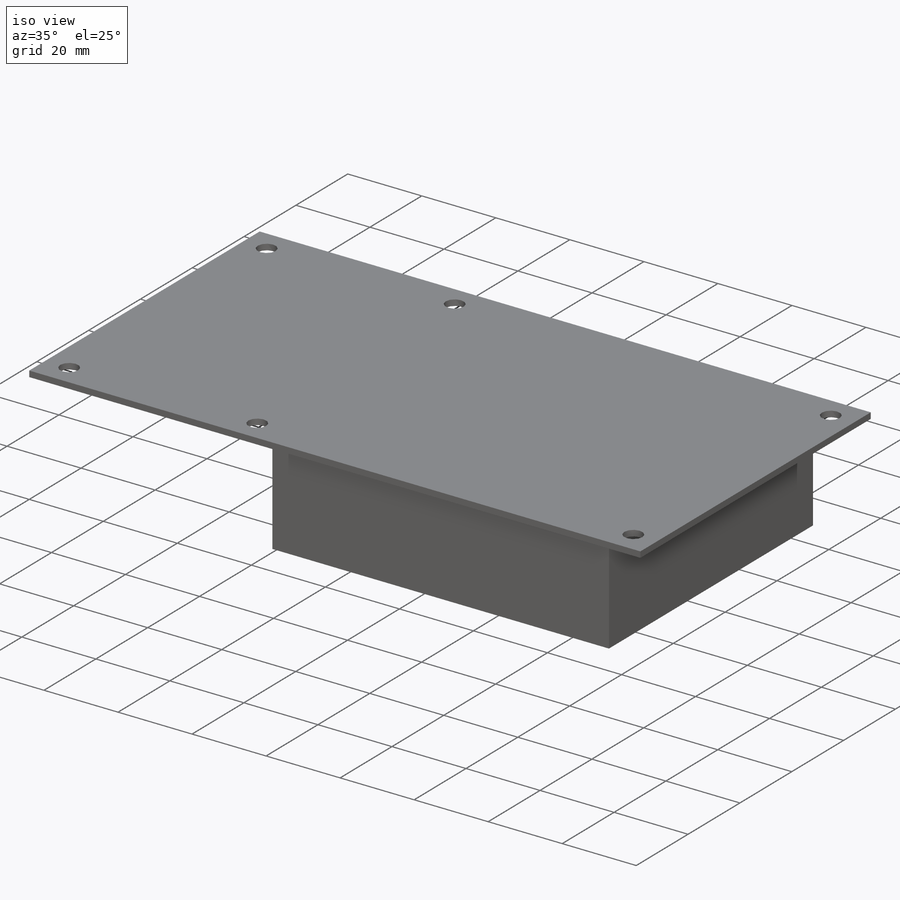
[diagram: iso view]
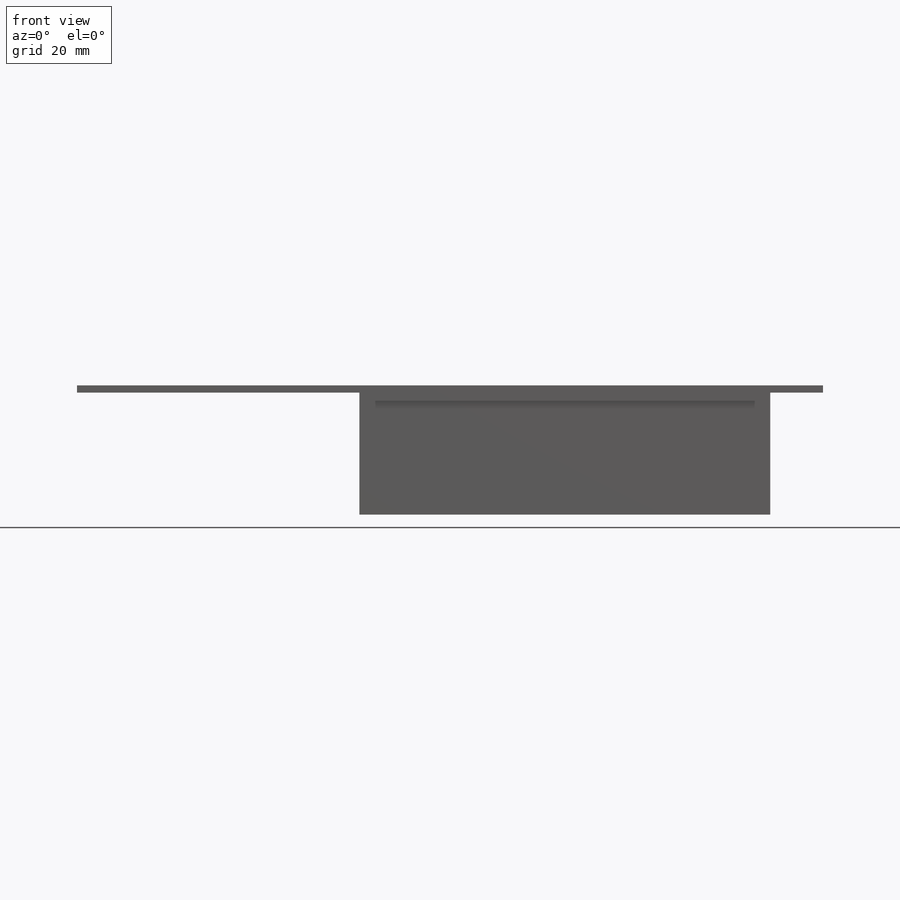
[diagram: front view]
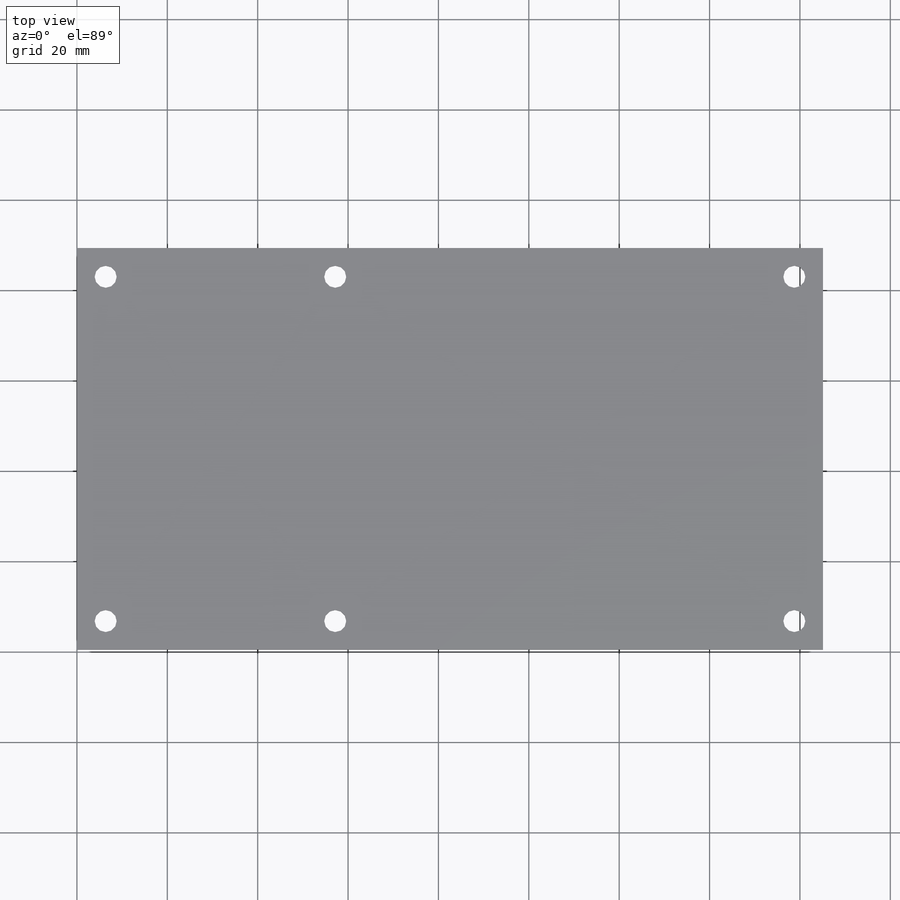
[diagram: top view]
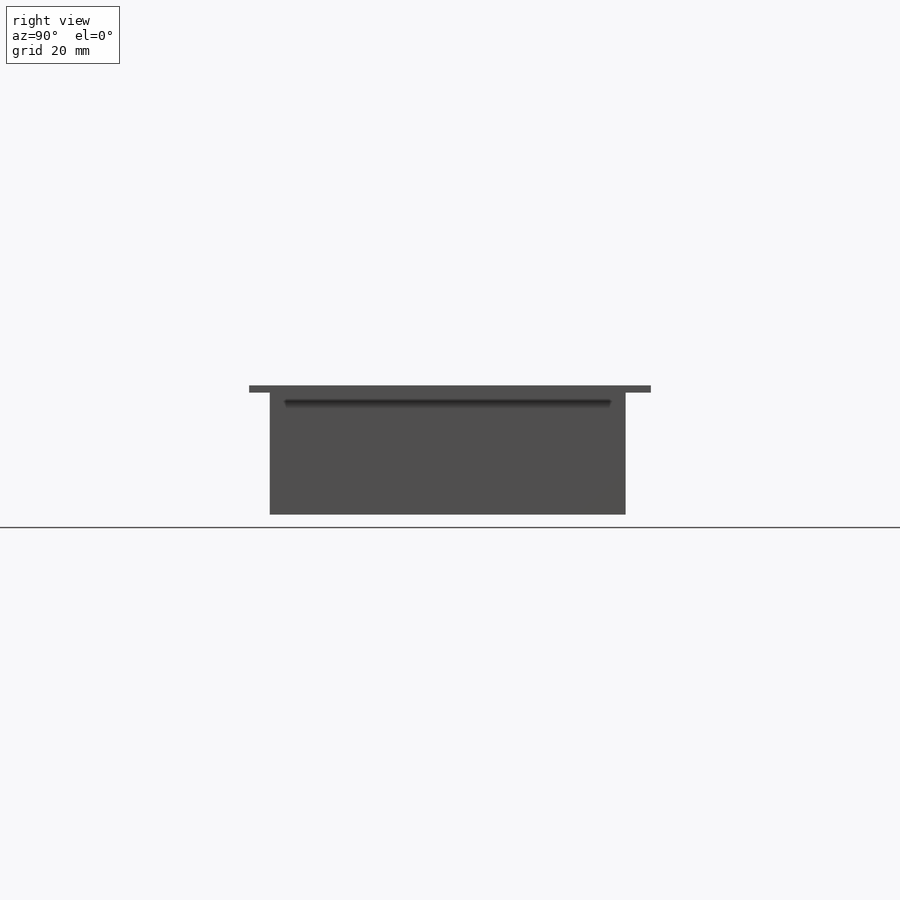
[diagram: right view]
SOLIDWORKS PART (.sldprt)
format: sldprt  version: not decoded by parser v0  size: 214,528 bytes
history: native  units: mm
features: sketch x3, extrude x2, material x1, cut_extrude x1 (+13 scaffold rows collapsed)
feature tree (20):
  scaffold x13  (default folders/planes/origin — collapsed)
  material  "Material <not specified>"
  sketch  "Sketch1"  dims[D1=165.1mm D2=88.9mm]
  extrude  "Extrude1"  Depth=1.6002mm
  sketch  "Sketch2"  dims[D1=4.8768mm D2=4.8768mm D3=4.8768mm D4=4.8768mm D5=4.8768mm D6=4.8768mm D7=6.35mm D8=6.35mm D9=76.2mm D10=101.6mm D11=50.8mm]
  cut_extrude  "Cut-Extrude1"  [1 undecoded]
  sketch  "Sketch3"  dims[D1=11.684mm D2=4.572mm D3=5.588mm D4=102.616mm]
  extrude  "Extrude2"  Depth=27.0002mm
decode coverage: 5 of 6 modeling features carry decoded parameters
note: 1 parameter value undecoded
note: suppression state not decoded; provenance and decode notes live in map.json
